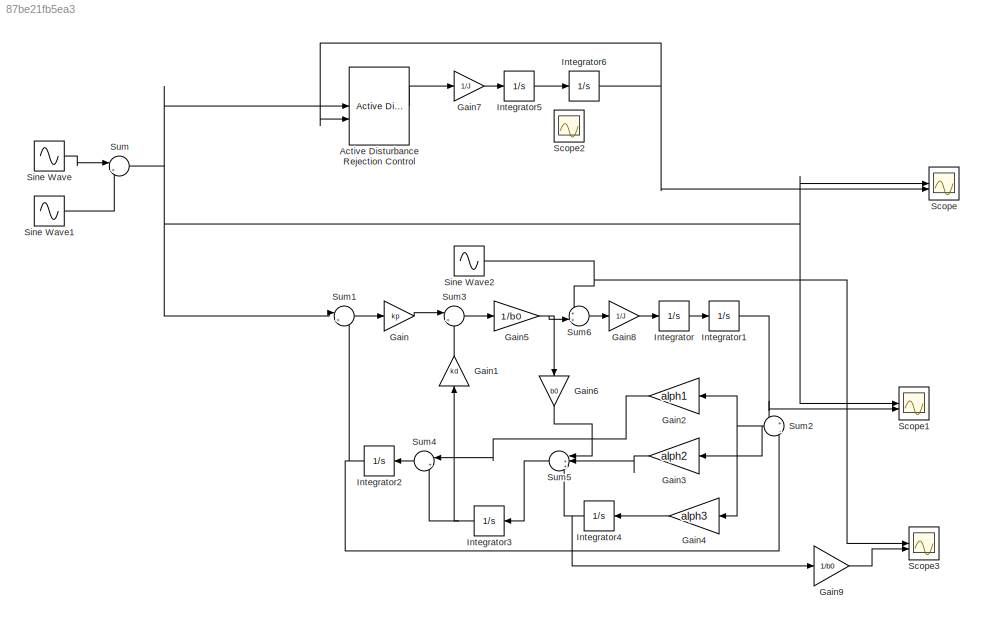
MODEL slx_87be21fb5ea3
KIND model
CONFIG AbsTol = auto
CONFIG EnableMultiTasking = off
CONFIG FixedStep = 0.00001
CONFIG MaxStep = 0.001
CONFIG MinStep = auto
CONFIG RelTol = 1e-3
CONFIG SampleTimeConstraint = Unconstrained
CONFIG SolverName = FixedStepAuto
CONFIG StartTime = 0.0
CONFIG StopTime = 10
BLOCK [Reference] Active Disturbance Rejection Control  REF=slctrl_adaptive/Active Disturbance Rejection Control
  LibrarySourceBlock = slctrlblks/Adaptive Control/Active Disturbance Rejection Control
  SourceBlock = slctrl_adaptive/Active Disturbance Rejection Control
  SourceType = Active Disturbance Rejection Control (ADRC)
BLOCK [Gain] Gain
  Gain = kp
BLOCK [Gain] Gain1
  Gain = kd
  NameLocation = right
BLOCK [Gain] Gain2
  Gain = alph1
  NameLocation = top
BLOCK [Gain] Gain3
  Gain = alph2
  NameLocation = top
BLOCK [Gain] Gain4
  Gain = alph3
  NameLocation = top
BLOCK [Gain] Gain5
  Gain = 1/b0
BLOCK [Gain] Gain6
  Gain = b0
  NameLocation = left
BLOCK [Gain] Gain7
  Gain = 1/J
BLOCK [Gain] Gain8
  Gain = 1/J
BLOCK [Gain] Gain9
  Gain = 1/b0
BLOCK [Integrator] Integrator
BLOCK [Integrator] Integrator1
BLOCK [Integrator] Integrator2
  NameLocation = top
BLOCK [Integrator] Integrator3
  NameLocation = top
BLOCK [Integrator] Integrator4
  NameLocation = top
BLOCK [Integrator] Integrator5
BLOCK [Integrator] Integrator6
BLOCK [Scope] Scope
  Floating = off
  NumInputPorts = 2
  ScopeSpecificationString = Simulink.scopes.TimeScopeBlockCfg('CurrentConfiguration', extmgr.ConfigurationSet(extmgr.Configuration('Core','General UI',true),extmgr.Configuration('Core','Source UI',true),extmgr.Configuration('Sources','WiredSimulink',true),extmgr.Configuration('Visuals','Time Domain',true,'SerializedDisplays',{struct('MinYLimReal','-1.14848','MaxYLimReal','1.04767','YLabelReal','','MinYLimMag','0.00000','MaxY...<+1416ch>
BLOCK [Scope] Scope1
  Floating = off
  NumInputPorts = 2
  ScopeSpecificationString = Simulink.scopes.TimeScopeBlockCfg('CurrentConfiguration', extmgr.ConfigurationSet(extmgr.Configuration('Core','General UI',true),extmgr.Configuration('Core','Source UI',true),extmgr.Configuration('Sources','WiredSimulink',true,'DataLoggingVariableName','ScopeData1'),extmgr.Configuration('Visuals','Time Domain',true,'SerializedDisplays',{struct('MinYLimReal','-1.18994','MaxYLimReal','1.09253','YLab...<+1458ch>
BLOCK [Scope] Scope2
  Floating = off
  NumInputPorts = 1
  ScopeSpecificationString = Simulink.scopes.TimeScopeBlockCfg('CurrentConfiguration', extmgr.ConfigurationSet(extmgr.Configuration('Core','General UI',true),extmgr.Configuration('Core','Source UI',true),extmgr.Configuration('Sources','WiredSimulink',true,'DataLoggingVariableName','ScopeData1'),extmgr.Configuration('Visuals','Time Domain',true,'SerializedDisplays',{struct('MinYLimReal','-72.14831','MaxYLimReal','73.43173','YL...<+1596ch>
BLOCK [Scope] Scope3
  Floating = off
  NumInputPorts = 2
  ScopeSpecificationString = Simulink.scopes.TimeScopeBlockCfg('CurrentConfiguration', extmgr.ConfigurationSet(extmgr.Configuration('Core','General UI',true),extmgr.Configuration('Core','Source UI',true),extmgr.Configuration('Sources','WiredSimulink',true,'DataLoggingVariableName','ScopeData1'),extmgr.Configuration('Visuals','Time Domain',true,'SerializedDisplays',{struct('MinYLimReal','-1.25','MaxYLimReal','1.25','YLabelReal...<+1438ch>
BLOCK [Sin] Sine Wave
  Frequency = 50
  SampleTime = 0
BLOCK [Sin] Sine Wave1
  Amplitude = 0.05
  Frequency = 500
  SampleTime = 0
BLOCK [Sin] Sine Wave2
  Frequency = 50
  SampleTime = 0
BLOCK [Sum] Sum
  Inputs = |++
BLOCK [Sum] Sum1
  Inputs = |+-
BLOCK [Sum] Sum2
  Inputs = +|-
  NameLocation = top
BLOCK [Sum] Sum3
  Inputs = |+-
BLOCK [Sum] Sum4
  Inputs = |++
  NameLocation = top
BLOCK [Sum] Sum5
  Inputs = |+++
  NameLocation = top
BLOCK [Sum] Sum6
  Inputs = ++|
LINE Active Disturbance Rejection Control:1 -> Gain7:1
LINE Gain1:1 -> Sum3:2
LINE Gain2:1 -> Sum4:1
LINE Gain3:1 -> Sum5:2
LINE Gain4:1 -> Integrator4:1
NET Gain5:1 -> Gain6:1, Sum6:2
LINE Gain6:1 -> Sum5:1
LINE Gain7:1 -> Integrator5:1
LINE Gain8:1 -> Integrator:1
LINE Gain9:1 -> Scope3:2
LINE Gain:1 -> Sum3:1
NET Integrator1:1 -> Scope1:2, Sum2:1
NET Integrator2:1 -> Sum1:2, Sum2:2
NET Integrator3:1 -> Gain1:1, Sum4:2
NET Integrator4:1 -> Gain9:1, Sum5:3
LINE Integrator5:1 -> Integrator6:1
NET Integrator6:1 -> Active Disturbance Rejection Control:2, Scope:2
LINE Integrator:1 -> Integrator1:1
LINE Sine Wave1:1 -> Sum:2
NET Sine Wave2:1 -> Scope3:1, Sum6:1
LINE Sine Wave:1 -> Sum:1
LINE Sum1:1 -> Gain:1
NET Sum2:1 -> Gain2:1, Gain3:1, Gain4:1
LINE Sum3:1 -> Gain5:1
LINE Sum4:1 -> Integrator2:1
LINE Sum5:1 -> Integrator3:1
LINE Sum6:1 -> Gain8:1
NET Sum:1 -> Active Disturbance Rejection Control:1, Scope1:1, Scope:1, Sum1:1
note: NET lines group one-source signal fan-out (src -> all destinations, sorted); 1:1 wires keep LINE
